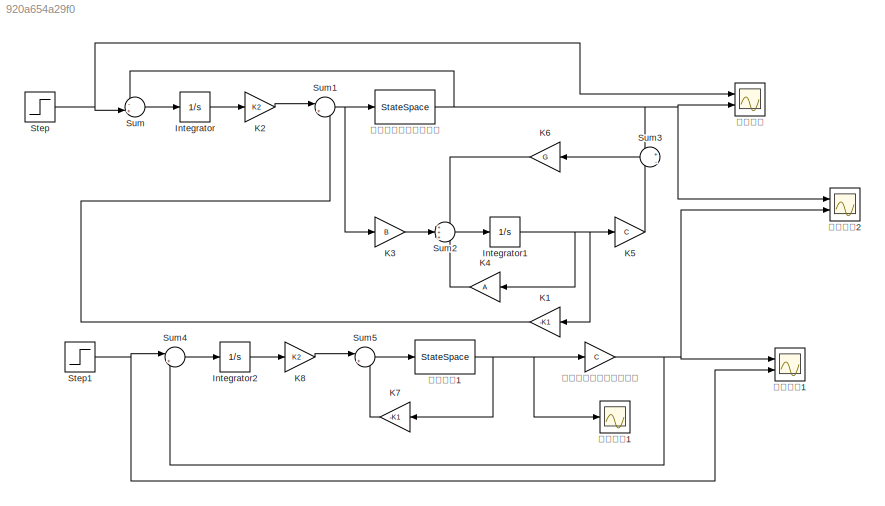
MODEL slx_920a654a29f0
KIND model
CONFIG AbsTol = auto
CONFIG FixedStep = auto
CONFIG MaxStep = auto
CONFIG MinStep = auto
CONFIG RelTol = 1e-3
CONFIG SampleTimeConstraint = Unconstrained
CONFIG Solver = VariableStepAuto
CONFIG SolverMode = SingleTasking
CONFIG SolverName = VariableStepAuto
CONFIG StartTime = 0.0
CONFIG StopTime = 50
BLOCK [Integrator] Integrator
  InitialCondition = [0]
  Ports = [1, 1]
BLOCK [Integrator] Integrator1
  InitialCondition = Initobserv
  Ports = [1, 1]
BLOCK [Integrator] Integrator2
  InitialCondition = [0]
  Ports = [1, 1]
BLOCK [Gain] K1
  Gain = -K1
  Multiplication = Matrix(K*u)
BLOCK [Gain] K2
  Gain = K2
  Multiplication = Matrix(K*u)
BLOCK [Gain] K3
  Gain = B
  Multiplication = Matrix(K*u)
BLOCK [Gain] K4
  Gain = A
  Multiplication = Matrix(K*u)
BLOCK [Gain] K5
  Gain = C
  Multiplication = Matrix(K*u)
BLOCK [Gain] K6
  Gain = G
  Multiplication = Matrix(K*u)
BLOCK [Gain] K7
  Gain = -K1
  Multiplication = Matrix(K*u)
BLOCK [Gain] K8
  Gain = K2
  Multiplication = Matrix(K*u)
BLOCK [Step] Step
  SampleTime = 0
BLOCK [Step] Step1
  SampleTime = 0
BLOCK [Sum] Sum
  Inputs = -+|
  Ports = [2, 1]
BLOCK [Sum] Sum1
  Inputs = |++
  Ports = [2, 1]
BLOCK [Sum] Sum2
  Inputs = +++
  Ports = [3, 1]
BLOCK [Sum] Sum3
  Inputs = +|-
  Ports = [2, 1]
BLOCK [Sum] Sum4
  Inputs = |+-
  Ports = [2, 1]
BLOCK [Sum] Sum5
  Inputs = |++
  Ports = [2, 1]
BLOCK [StateSpace] 基于观测器的跟踪输出
  A = A
  B = B
  C = C
  D = D
  Ports = [1, 1]
  X0 = Init
BLOCK [StateSpace] 状态变量1
  A = A
  B = B
  C = eye(4)
  D = [0;0;0;0]
  Ports = [1, 1]
  X0 = Init
BLOCK [Scope] 状态响应1
  Floating = off
  NumInputPorts = 1
  Ports = [1]
  ScopeSpecificationString = Simulink.scopes.TimeScopeBlockCfg('CurrentConfiguration', extmgr.ConfigurationSet(extmgr.Configuration('Core','General UI',true,'FigureColor',[0.941176470588235 0.941176470588235 0.941176470588235]),extmgr.Configuration('Core','Source UI',true),extmgr.Configuration('Sources','WiredSimulink',true,'DataLoggingVariableName','ScopeData2'),extmgr.Configuration('Visuals','Time Domain',true,'SerializedDi...<+1741ch>
BLOCK [Gain] 直接状态反馈的跟踪输出
  Gain = C
  Multiplication = Matrix(K*u)
BLOCK [Scope] 输出响应
  Floating = off
  NumInputPorts = 2
  Ports = [2]
  ScopeSpecificationString = Simulink.scopes.TimeScopeBlockCfg('CurrentConfiguration', extmgr.ConfigurationSet(extmgr.Configuration('Core','General UI',true,'FigureColor',[1 1 1]),extmgr.Configuration('Core','Source UI',true),extmgr.Configuration('Sources','WiredSimulink',true),extmgr.Configuration('Visuals','Time Domain',true,'SerializedDisplays',{struct('MinYLimReal','-0.30133','MaxYLimReal','1.43411','YLabelReal','幅值','Min...<+1771ch>
BLOCK [Scope] 输出响应1
  Floating = off
  NumInputPorts = 2
  Ports = [2]
  ScopeSpecificationString = Simulink.scopes.TimeScopeBlockCfg('CurrentConfiguration', extmgr.ConfigurationSet(extmgr.Configuration('Core','General UI',true,'FigureColor',[1 1 1]),extmgr.Configuration('Core','Source UI',true),extmgr.Configuration('Sources','WiredSimulink',true,'DataLoggingVariableName','ScopeData3'),extmgr.Configuration('Visuals','Time Domain',true,'SerializedDisplays',{struct('MinYLimReal','-0.21926','MaxYLi...<+1802ch>
BLOCK [Scope] 输出响应2
  Floating = off
  NumInputPorts = 2
  Ports = [2]
  ScopeSpecificationString = Simulink.scopes.TimeScopeBlockCfg('CurrentConfiguration', extmgr.ConfigurationSet(extmgr.Configuration('Core','General UI',true,'FigureColor',[1 1 1]),extmgr.Configuration('Core','Source UI',true),extmgr.Configuration('Sources','WiredSimulink',true,'DataLoggingVariableName','ScopeData4'),extmgr.Configuration('Visuals','Time Domain',true,'SerializedDisplays',{struct('MinYLimReal','-0.31506','MaxYLi...<+1742ch>
NET Integrator1:1 -> K1:1, K4:1, K5:1
LINE Integrator2:1 -> K8:1
LINE Integrator:1 -> K2:1
LINE K1:1 -> Sum1:2
LINE K2:1 -> Sum1:1
LINE K3:1 -> Sum2:2
LINE K4:1 -> Sum2:3
LINE K5:1 -> Sum3:2
LINE K6:1 -> Sum2:1
LINE K7:1 -> Sum5:2
LINE K8:1 -> Sum5:1
NET Step1:1 -> Sum4:1, 输出响应1:2
NET Step:1 -> Sum:2, 输出响应:1
NET Sum1:1 -> K3:1, 基于观测器的跟踪输出:1
LINE Sum2:1 -> Integrator1:1
LINE Sum3:1 -> K6:1
LINE Sum4:1 -> Integrator2:1
LINE Sum5:1 -> 状态变量1:1
LINE Sum:1 -> Integrator:1
NET 基于观测器的跟踪输出:1 -> Sum3:1, Sum:1, 输出响应2:1, 输出响应:2
NET 状态变量1:1 -> K7:1, 状态响应1:1, 直接状态反馈的跟踪输出:1
NET 直接状态反馈的跟踪输出:1 -> Sum4:2, 输出响应1:1, 输出响应2:2
note: NET lines group one-source signal fan-out (src -> all destinations, sorted); 1:1 wires keep LINE
